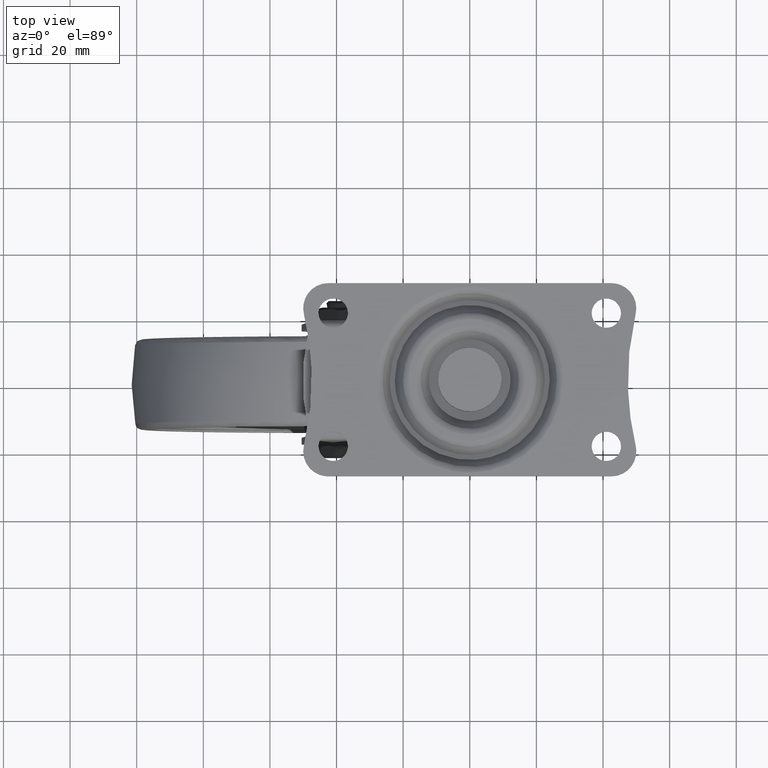
[diagram: clean part render]
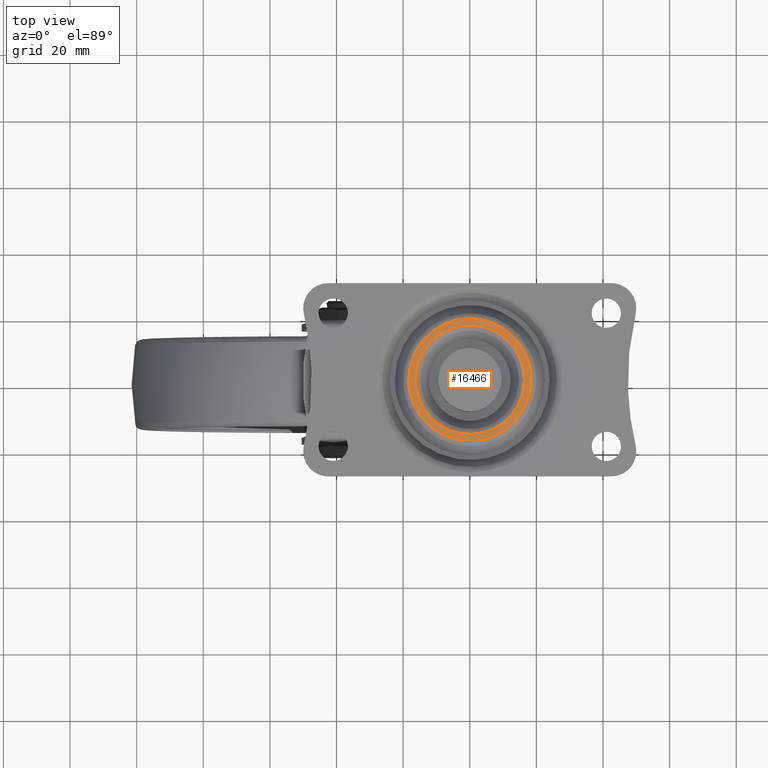
[diagram: same view with one face highlighted and labeled with its STEP entity id]
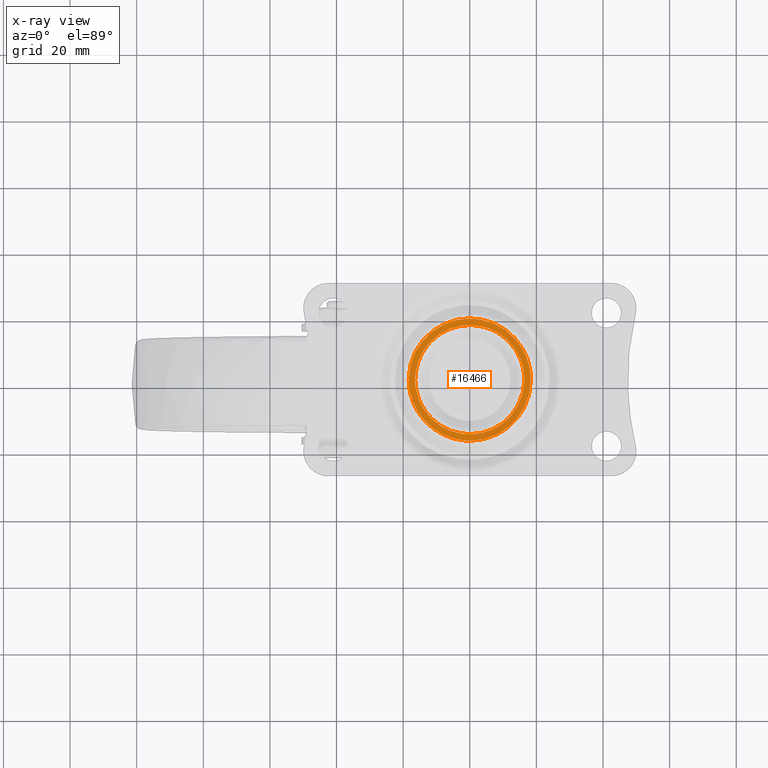
[diagram: x-ray of the same camera — body ghosted, the highlighted face saturated]
A machine part, top view. The second image highlights one B-rep face of the part: STEP entity #16466.
The next image is the same camera in x-ray: the body ghosted, the highlighted face saturated — about 0% of this face is hidden behind the body in this view.
In plain terms, the highlighted face is a freeform B-spline surface patch.
Its self-contained STEP definition (entity closure, byte-faithful):
#14791=CARTESIAN_POINT('',(-14.277037437115419,8.084139314058458,2.0));
#14792=VERTEX_POINT('',#14791);
#14806=CARTESIAN_POINT('',(-16.406922515515600,-1.421085E-014,2.0));
#14807=VERTEX_POINT('',#14806);
#14808=CARTESIAN_POINT('',(-16.406922515515600,-1.421085E-014,2.0));
#14809=CARTESIAN_POINT('',(-16.406922515515596,4.322644389291314,2.000000000000000));
#14810=CARTESIAN_POINT('',(-14.277037437115425,8.084139314058458,2.000000000000000));
#14818=(BOUNDED_CURVE()B_SPLINE_CURVE(2,(#14808,#14809,#14810),.UNSPECIFIED.,.F.,.U.)B_SPLINE_CURVE_WITH_KNOTS((3,3),(0.0,0.083983638484613),.UNSPECIFIED.)CURVE()GEOMETRIC_REPRESENTATION_ITEM()RATIONAL_B_SPLINE_CURVE((1.0,0.901607047186306,0.869321279800922))REPRESENTATION_ITEM(''));
#14819=EDGE_CURVE('',#14807,#14792,#14818,.T.);
#14821=CARTESIAN_POINT('',(16.406922515515600,-1.421085E-014,2.0));
#14822=VERTEX_POINT('',#14821);
#14823=CARTESIAN_POINT('',(16.406922515515600,-1.421085E-014,2.0));
#14824=CARTESIAN_POINT('',(16.406922515515600,-16.406922515515614,2.000000000000000));
#14825=CARTESIAN_POINT('',(0.0,-16.406922515515610,2.0));
#14826=CARTESIAN_POINT('',(-16.406922515515600,-16.406922515515614,2.000000000000000));
#14827=CARTESIAN_POINT('',(-16.406922515515600,-1.421085E-014,2.0));
#14835=(BOUNDED_CURVE()B_SPLINE_CURVE(2,(#14823,#14824,#14825,#14826,#14827),.UNSPECIFIED.,.F.,.U.)B_SPLINE_CURVE_WITH_KNOTS((3,2,3),(0.500000000000000,0.750000000000000,1.0),.UNSPECIFIED.)CURVE()GEOMETRIC_REPRESENTATION_ITEM()RATIONAL_B_SPLINE_CURVE((1.0,0.707106781186548,1.0,0.707106781186548,1.0))REPRESENTATION_ITEM(''));
#14836=EDGE_CURVE('',#14822,#14807,#14835,.T.);
#14838=CARTESIAN_POINT('',(8.084139314058469,14.277037437115411,2.0));
#14839=VERTEX_POINT('',#14838);
#14840=CARTESIAN_POINT('',(8.084139314058469,14.277037437115412,2.000000000000000));
#14841=CARTESIAN_POINT('',(16.406922515515600,9.564397354916567,2.000000000000000));
#14842=CARTESIAN_POINT('',(16.406922515515600,-1.421085E-014,2.0));
#14850=(BOUNDED_CURVE()B_SPLINE_CURVE(2,(#14840,#14841,#14842),.UNSPECIFIED.,.F.,.U.)B_SPLINE_CURVE_WITH_KNOTS((3,3),(0.333983638484613,0.500000000000000),.UNSPECIFIED.)CURVE()GEOMETRIC_REPRESENTATION_ITEM()RATIONAL_B_SPLINE_CURVE((0.869321279800922,0.805499734000242,1.0))REPRESENTATION_ITEM(''));
#14851=EDGE_CURVE('',#14839,#14822,#14850,.T.);
#14888=CARTESIAN_POINT('',(-14.277037437115416,8.084139314058458,2.0));
#14889=CARTESIAN_POINT('',(-9.564397354916578,16.406922515515589,2.000000000000000));
#14890=CARTESIAN_POINT('',(0.0,16.406922515515589,2.0));
#14891=CARTESIAN_POINT('',(4.322644389291342,16.406922515515593,2.000000000000000));
#14892=CARTESIAN_POINT('',(8.084139314058469,14.277037437115407,2.0));
#14900=(BOUNDED_CURVE()B_SPLINE_CURVE(2,(#14888,#14889,#14890,#14891,#14892),.UNSPECIFIED.,.F.,.U.)B_SPLINE_CURVE_WITH_KNOTS((3,2,3),(0.083983638484613,0.250000000000000,0.333983638484613),.UNSPECIFIED.)CURVE()GEOMETRIC_REPRESENTATION_ITEM()RATIONAL_B_SPLINE_CURVE((0.869321279800922,0.805499734000242,1.0,0.901607047186305,0.869321279800922))REPRESENTATION_ITEM(''));
#14901=EDGE_CURVE('',#14792,#14839,#14900,.T.);
#14936=CARTESIAN_POINT('',(8.316551359697140,-16.349417887409029,2.0));
#14937=VERTEX_POINT('',#14936);
#14938=CARTESIAN_POINT('',(-18.343077484484400,-1.421085E-014,2.0));
#14939=VERTEX_POINT('',#14938);
#14940=CARTESIAN_POINT('',(8.316551359697140,-16.349417887409029,1.999999999999999));
#14941=CARTESIAN_POINT('',(4.397237625648025,-18.343077484484414,2.000000000000000));
#14942=CARTESIAN_POINT('',(0.0,-18.343077484484411,2.0));
#14943=CARTESIAN_POINT('',(-18.343077484484404,-18.343077484484418,2.000000000000000));
#14944=CARTESIAN_POINT('',(-18.343077484484400,-1.421085E-014,2.0));
#14952=(BOUNDED_CURVE()B_SPLINE_CURVE(2,(#14940,#14941,#14942,#14943,#14944),.UNSPECIFIED.,.F.,.U.)B_SPLINE_CURVE_WITH_KNOTS((3,2,3),(0.672901120403438,0.750000000000000,1.0),.UNSPECIFIED.)CURVE()GEOMETRIC_REPRESENTATION_ITEM()RATIONAL_B_SPLINE_CURVE((0.875058944773638,0.909673043952209,1.0,0.707106781186548,1.0))REPRESENTATION_ITEM(''));
#14953=EDGE_CURVE('',#14937,#14939,#14952,.T.);
#14955=CARTESIAN_POINT('',(15.847014207513340,9.237999426497126,1.999999999999999));
#14956=VERTEX_POINT('',#14955);
#14957=CARTESIAN_POINT('',(-18.343077484484400,-1.421085E-014,2.0));
#14958=CARTESIAN_POINT('',(-18.343077484484404,18.343077484484386,2.000000000000000));
#14959=CARTESIAN_POINT('',(0.0,18.343077484484390,2.0));
#14960=CARTESIAN_POINT('',(10.539218976516114,18.343077484484390,2.0));
#14961=CARTESIAN_POINT('',(15.847014207513338,9.237999426497126,2.000000000000000));
#14969=(BOUNDED_CURVE()B_SPLINE_CURVE(2,(#14957,#14958,#14959,#14960,#14961),.UNSPECIFIED.,.F.,.U.)B_SPLINE_CURVE_WITH_KNOTS((3,2,3),(0.0,0.250000000000000,0.414086837554606),.UNSPECIFIED.)CURVE()GEOMETRIC_REPRESENTATION_ITEM()RATIONAL_B_SPLINE_CURVE((1.0,0.707106781186548,1.0,0.807760311934846,0.867872643606452))REPRESENTATION_ITEM(''));
#14970=EDGE_CURVE('',#14939,#14956,#14969,.T.);
#15028=CARTESIAN_POINT('',(18.343077484484400,-1.421085E-014,2.0));
#15029=VERTEX_POINT('',#15028);
#15030=CARTESIAN_POINT('',(18.343077484484400,-1.421085E-014,2.0));
#15031=CARTESIAN_POINT('',(18.343077484484407,-11.249167827180351,1.999999999999999));
#15032=CARTESIAN_POINT('',(8.316551359697140,-16.349417887409036,2.000000000000000));
#15040=(BOUNDED_CURVE()B_SPLINE_CURVE(2,(#15030,#15031,#15032),.UNSPECIFIED.,.F.,.U.)B_SPLINE_CURVE_WITH_KNOTS((3,3),(0.500000000000000,0.672901120403437),.UNSPECIFIED.)CURVE()GEOMETRIC_REPRESENTATION_ITEM()RATIONAL_B_SPLINE_CURVE((1.0,0.797433737234340,0.875058944773637))REPRESENTATION_ITEM(''));
#15041=EDGE_CURVE('',#15029,#14937,#15040,.T.);
#15047=CARTESIAN_POINT('',(15.847014207513338,9.237999426497126,2.000000000000000));
#15048=CARTESIAN_POINT('',(18.343077484484404,4.956211895508538,2.0));
#15049=CARTESIAN_POINT('',(18.343077484484400,-1.421085E-014,2.0));
#15057=(BOUNDED_CURVE()B_SPLINE_CURVE(2,(#15047,#15048,#15049),.UNSPECIFIED.,.F.,.U.)B_SPLINE_CURVE_WITH_KNOTS((3,3),(0.414086837554605,0.500000000000000),.UNSPECIFIED.)CURVE()GEOMETRIC_REPRESENTATION_ITEM()RATIONAL_B_SPLINE_CURVE((0.867872643606452,0.899346469251701,1.0))REPRESENTATION_ITEM(''));
#15058=EDGE_CURVE('',#14956,#15029,#15057,.T.);
#16449=CARTESIAN_POINT('',(-20.175550034244040,-20.175230888568642,2.0));
#16450=CARTESIAN_POINT('',(20.175549050244690,-20.175230888568642,2.0));
#16451=CARTESIAN_POINT('',(-20.175550034244040,20.175473603651302,2.0));
#16452=CARTESIAN_POINT('',(20.175549050244690,20.175473603651302,2.0));
#16453=B_SPLINE_SURFACE_WITH_KNOTS('',1,1,((#16449,#16451),(#16450,#16452)),.UNSPECIFIED.,.F.,.F.,.U.,(2,2),(2,2),(0.0,40.351099084488723),(0.0,40.350704492219933),.UNSPECIFIED.);
#16454=ORIENTED_EDGE('',*,*,#14953,.F.);
#16455=ORIENTED_EDGE('',*,*,#15041,.F.);
#16456=ORIENTED_EDGE('',*,*,#15058,.F.);
#16457=ORIENTED_EDGE('',*,*,#14970,.F.);
#16458=EDGE_LOOP('',(#16454,#16455,#16456,#16457));
#16459=FACE_OUTER_BOUND('',#16458,.T.);
#16460=ORIENTED_EDGE('',*,*,#14836,.T.);
#16461=ORIENTED_EDGE('',*,*,#14819,.T.);
#16462=ORIENTED_EDGE('',*,*,#14901,.T.);
#16463=ORIENTED_EDGE('',*,*,#14851,.T.);
#16464=EDGE_LOOP('',(#16460,#16461,#16462,#16463));
#16465=FACE_BOUND('',#16464,.T.);
#16466=ADVANCED_FACE('',(#16459,#16465),#16453,.T.);